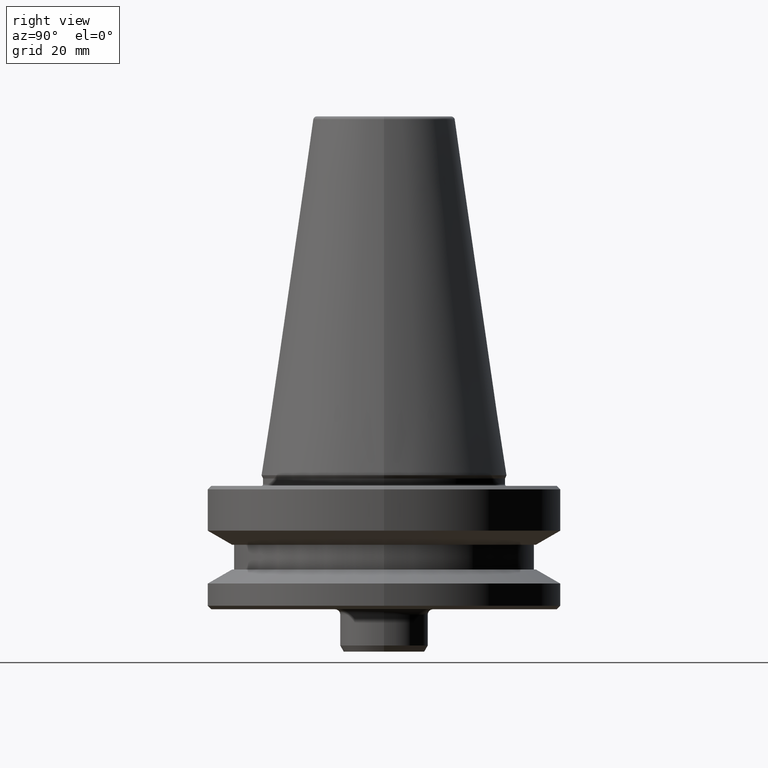
[diagram: clean part render]
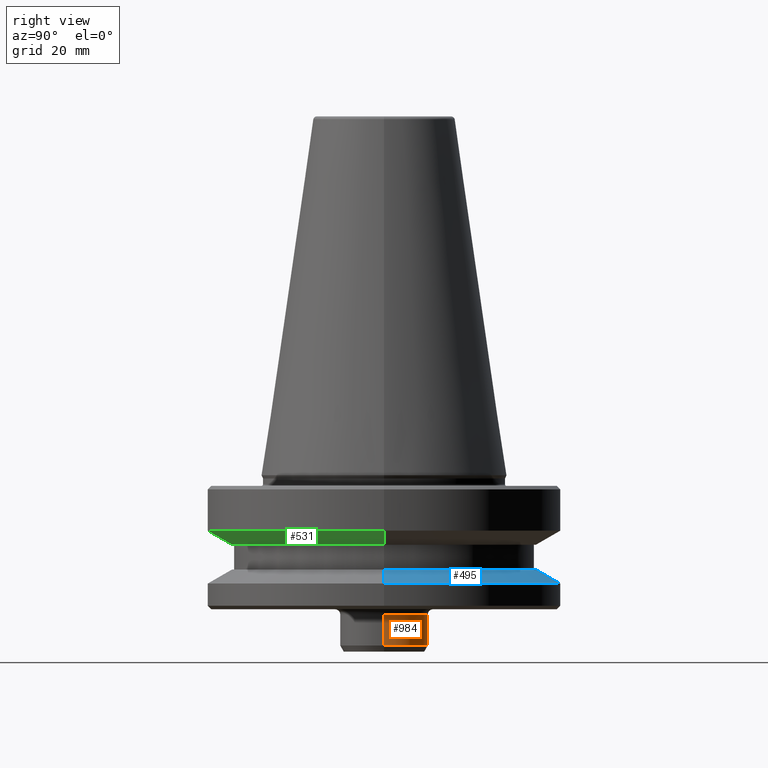
[diagram: same view with three faces highlighted in distinct colors, each labeled with its STEP entity id]
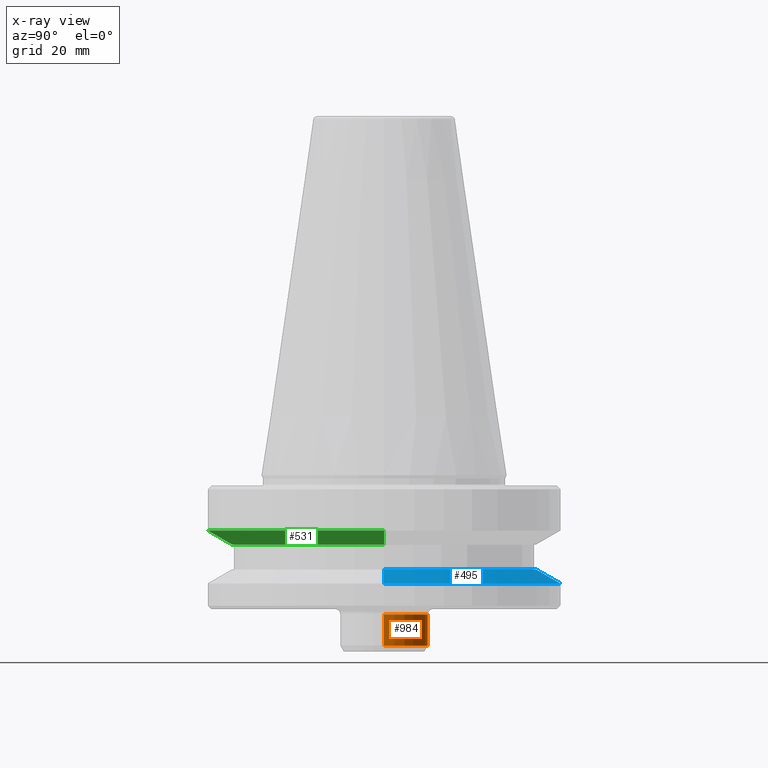
[diagram: x-ray of the same camera — body ghosted, the three highlighted faces saturated]
A machine part, right view with three faces highlighted in distinct colors.
The next image is the same camera in x-ray (body ghosted, the three faces saturated) — at least one of them is partly hidden behind the body in this view.
Their STEP definitions:

[orange] entity #984 — the highlighted cylindrical surface (partial cylindrical patch) has radius 12.5 mm, axis along (-0, -0, 1).
#2 = AXIS2_PLACEMENT_3D ( 'NONE', #58, #611, #130 ) ;
#14 = VERTEX_POINT ( 'NONE', #977 ) ;
#15 = EDGE_CURVE ( 'NONE', #566, #395, #452, .T. ) ;
#21 = AXIS2_PLACEMENT_3D ( 'NONE', #775, #382, #491 ) ;
#58 = CARTESIAN_POINT ( 'NONE',  ( 0.0000000000000000000, 0.0000000000000000000, -39.49999999994123800 ) ) ;
#80 = EDGE_CURVE ( 'NONE', #566, #256, #822, .T. ) ;
#130 = DIRECTION ( 'NONE',  ( 1.000000000000000000, 0.0000000000000000000, 0.0000000000000000000 ) ) ;
#134 = ORIENTED_EDGE ( 'NONE', *, *, #15, .T. ) ;
#163 = CARTESIAN_POINT ( 'NONE',  ( 12.49999999999973400, 0.0000000000000000000, -39.49999999994123800 ) ) ;
#167 = ORIENTED_EDGE ( 'NONE', *, *, #203, .T. ) ;
#175 = AXIS2_PLACEMENT_3D ( 'NONE', #325, #872, #407 ) ;
#199 = EDGE_LOOP ( 'NONE', ( #134, #167, #244, #642 ) ) ;
#203 = EDGE_CURVE ( 'NONE', #395, #14, #609, .T. ) ;
#231 = CYLINDRICAL_SURFACE ( 'NONE', #21, 12.49999999999973400 ) ;
#244 = ORIENTED_EDGE ( 'NONE', *, *, #530, .F. ) ;
#256 = VERTEX_POINT ( 'NONE', #163 ) ;
#269 = CARTESIAN_POINT ( 'NONE',  ( -12.49999999999973400, 1.530808498934158800E-015, 108.3108805077434200 ) ) ;
#325 = CARTESIAN_POINT ( 'NONE',  ( 0.0000000000000000000, 0.0000000000000000000, -48.26794919237296700 ) ) ;
#349 = CARTESIAN_POINT ( 'NONE',  ( -12.49999999999973500, 1.530808498934159200E-015, -48.26794919237296700 ) ) ;
#382 = DIRECTION ( 'NONE',  ( -0.0000000000000000000, -0.0000000000000000000, 1.000000000000000000 ) ) ;
#395 = VERTEX_POINT ( 'NONE', #349 ) ;
#407 = DIRECTION ( 'NONE',  ( 1.000000000000000000, 0.0000000000000000000, 0.0000000000000000000 ) ) ;
#452 = CIRCLE ( 'NONE', #175, 12.49999999999973500 ) ;
#486 = VECTOR ( 'NONE', #620, 1000.000000000000000 ) ;
#491 = DIRECTION ( 'NONE',  ( 1.000000000000000000, 0.0000000000000000000, 0.0000000000000000000 ) ) ;
#513 = DIRECTION ( 'NONE',  ( -0.0000000000000000000, -0.0000000000000000000, 1.000000000000000000 ) ) ;
#530 = EDGE_CURVE ( 'NONE', #256, #14, #709, .T. ) ;
#534 = CARTESIAN_POINT ( 'NONE',  ( 12.49999999999973500, 0.0000000000000000000, -48.26794919237296700 ) ) ;
#566 = VERTEX_POINT ( 'NONE', #534 ) ;
#579 = CARTESIAN_POINT ( 'NONE',  ( 12.49999999999973400, 0.0000000000000000000, 108.3108805077434200 ) ) ;
#609 = LINE ( 'NONE', #269, #712 ) ;
#611 = DIRECTION ( 'NONE',  ( -0.0000000000000000000, -0.0000000000000000000, 1.000000000000000000 ) ) ;
#620 = DIRECTION ( 'NONE',  ( -0.0000000000000000000, -0.0000000000000000000, 1.000000000000000000 ) ) ;
#642 = ORIENTED_EDGE ( 'NONE', *, *, #80, .F. ) ;
#709 = CIRCLE ( 'NONE', #2, 12.49999999999973400 ) ;
#712 = VECTOR ( 'NONE', #513, 1000.000000000000000 ) ;
#775 = CARTESIAN_POINT ( 'NONE',  ( 0.0000000000000000000, 0.0000000000000000000, 108.3108805077434200 ) ) ;
#822 = LINE ( 'NONE', #579, #486 ) ;
#872 = DIRECTION ( 'NONE',  ( -0.0000000000000000000, -0.0000000000000000000, 1.000000000000000000 ) ) ;
#964 = FACE_OUTER_BOUND ( 'NONE', #199, .T. ) ;
#977 = CARTESIAN_POINT ( 'NONE',  ( -12.49999999999973400, 1.530808498934158800E-015, -39.49999999994123800 ) ) ;
#984 = ADVANCED_FACE ( 'NONE', ( #964 ), #231, .T. ) ;

[blue] entity #495 — the highlighted conical surface has half-angle 60 deg.
#86 = LINE ( 'NONE', #369, #252 ) ;
#151 = CARTESIAN_POINT ( 'NONE',  ( 0.0000000000000000000, 0.0000000000000000000, -30.69977999671412400 ) ) ;
#152 = EDGE_CURVE ( 'NONE', #870, #844, #969, .T. ) ;
#209 = CARTESIAN_POINT ( 'NONE',  ( 0.0000000000000000000, 0.0000000000000000000, -26.69999999993998000 ) ) ;
#224 = VERTEX_POINT ( 'NONE', #968 ) ;
#252 = VECTOR ( 'NONE', #450, 1000.000000000000000 ) ;
#284 = DIRECTION ( 'NONE',  ( 1.000000000000000000, 0.0000000000000000000, 0.0000000000000000000 ) ) ;
#299 = CARTESIAN_POINT ( 'NONE',  ( 43.07217782648930900, 5.699027233244158500E-015, -26.69999999993998000 ) ) ;
#347 = DIRECTION ( 'NONE',  ( -0.0000000000000000000, -0.0000000000000000000, 1.000000000000000000 ) ) ;
#365 = DIRECTION ( 'NONE',  ( -0.8660254037844390400, 0.0000000000000000000, -0.4999999999999993300 ) ) ;
#369 = CARTESIAN_POINT ( 'NONE',  ( 49.99999999999982200, 6.123233995736744000E-015, -30.69977999671412400 ) ) ;
#373 = EDGE_LOOP ( 'NONE', ( #770, #538, #655, #524 ) ) ;
#410 = EDGE_CURVE ( 'NONE', #870, #224, #86, .T. ) ;
#450 = DIRECTION ( 'NONE',  ( 0.8660254037844390400, 1.060575238724907400E-016, -0.4999999999999993300 ) ) ;
#490 = VERTEX_POINT ( 'NONE', #930 ) ;
#495 = ADVANCED_FACE ( 'NONE', ( #567 ), #879, .T. ) ;
#500 = AXIS2_PLACEMENT_3D ( 'NONE', #810, #347, #893 ) ;
#524 = ORIENTED_EDGE ( 'NONE', *, *, #535, .F. ) ;
#535 = EDGE_CURVE ( 'NONE', #844, #490, #574, .T. ) ;
#538 = ORIENTED_EDGE ( 'NONE', *, *, #410, .T. ) ;
#567 = FACE_OUTER_BOUND ( 'NONE', #373, .T. ) ;
#574 = LINE ( 'NONE', #829, #714 ) ;
#584 = EDGE_CURVE ( 'NONE', #224, #490, #669, .T. ) ;
#626 = AXIS2_PLACEMENT_3D ( 'NONE', #209, #751, #284 ) ;
#655 = ORIENTED_EDGE ( 'NONE', *, *, #584, .T. ) ;
#666 = CARTESIAN_POINT ( 'NONE',  ( -43.07217782648930900, 0.0000000000000000000, -26.69999999993998000 ) ) ;
#669 = CIRCLE ( 'NONE', #500, 49.99999999999982200 ) ;
#694 = DIRECTION ( 'NONE',  ( 0.0000000000000000000, 0.0000000000000000000, -1.000000000000000000 ) ) ;
#714 = VECTOR ( 'NONE', #365, 1000.000000000000000 ) ;
#743 = AXIS2_PLACEMENT_3D ( 'NONE', #151, #694, #772 ) ;
#751 = DIRECTION ( 'NONE',  ( -0.0000000000000000000, -0.0000000000000000000, 1.000000000000000000 ) ) ;
#770 = ORIENTED_EDGE ( 'NONE', *, *, #152, .F. ) ;
#772 = DIRECTION ( 'NONE',  ( -1.000000000000000000, 0.0000000000000000000, 0.0000000000000000000 ) ) ;
#810 = CARTESIAN_POINT ( 'NONE',  ( 0.0000000000000000000, 0.0000000000000000000, -30.69977999671412400 ) ) ;
#829 = CARTESIAN_POINT ( 'NONE',  ( -49.99999999999982200, 0.0000000000000000000, -30.69977999671412400 ) ) ;
#844 = VERTEX_POINT ( 'NONE', #666 ) ;
#870 = VERTEX_POINT ( 'NONE', #299 ) ;
#879 = CONICAL_SURFACE ( 'NONE', #743, 49.99999999999982200, 1.047197551196598500 ) ;
#893 = DIRECTION ( 'NONE',  ( 1.000000000000000000, 0.0000000000000000000, 0.0000000000000000000 ) ) ;
#930 = CARTESIAN_POINT ( 'NONE',  ( -49.99999999999982200, 6.123233995736744000E-015, -30.69977999671412400 ) ) ;
#968 = CARTESIAN_POINT ( 'NONE',  ( 49.99999999999982200, 0.0000000000000000000, -30.69977999671412400 ) ) ;
#969 = CIRCLE ( 'NONE', #626, 43.07217782648930900 ) ;

[green] entity #531 — the highlighted conical surface has half-angle 60 deg.
#18 = VERTEX_POINT ( 'NONE', #202 ) ;
#36 = EDGE_CURVE ( 'NONE', #300, #654, #499, .T. ) ;
#43 = AXIS2_PLACEMENT_3D ( 'NONE', #832, #934, #508 ) ;
#64 = CONICAL_SURFACE ( 'NONE', #855, 43.07217782649175300, 1.047197551196595400 ) ;
#69 = EDGE_CURVE ( 'NONE', #378, #18, #544, .T. ) ;
#99 = CARTESIAN_POINT ( 'NONE',  ( -43.07217782649175300, 5.274820470751872700E-015, -19.70000000000070300 ) ) ;
#202 = CARTESIAN_POINT ( 'NONE',  ( -50.00000000000027000, 6.123233995736798400E-015, -15.70022000322768300 ) ) ;
#298 = FACE_OUTER_BOUND ( 'NONE', #677, .T. ) ;
#300 = VERTEX_POINT ( 'NONE', #610 ) ;
#316 = CIRCLE ( 'NONE', #43, 50.00000000000027000 ) ;
#370 = VECTOR ( 'NONE', #916, 999.9999999999998900 ) ;
#374 = DIRECTION ( 'NONE',  ( -0.8660254037844376000, 1.060575238724905600E-016, 0.5000000000000020000 ) ) ;
#378 = VERTEX_POINT ( 'NONE', #468 ) ;
#435 = DIRECTION ( 'NONE',  ( -0.0000000000000000000, -0.0000000000000000000, 1.000000000000000000 ) ) ;
#442 = CARTESIAN_POINT ( 'NONE',  ( 0.0000000000000000000, 0.0000000000000000000, -19.70000000000070300 ) ) ;
#468 = CARTESIAN_POINT ( 'NONE',  ( -43.07217782649175300, 5.699027233244335200E-015, -19.70000000000070300 ) ) ;
#471 = ORIENTED_EDGE ( 'NONE', *, *, #571, .F. ) ;
#499 = LINE ( 'NONE', #830, #370 ) ;
#508 = DIRECTION ( 'NONE',  ( 1.000000000000000000, 0.0000000000000000000, 0.0000000000000000000 ) ) ;
#525 = CARTESIAN_POINT ( 'NONE',  ( 50.00000000000027000, 0.0000000000000000000, -15.70022000322768300 ) ) ;
#531 = ADVANCED_FACE ( 'NONE', ( #298 ), #64, .T. ) ;
#544 = LINE ( 'NONE', #99, #819 ) ;
#571 = EDGE_CURVE ( 'NONE', #18, #654, #316, .T. ) ;
#610 = CARTESIAN_POINT ( 'NONE',  ( 43.07217782649175300, 0.0000000000000000000, -19.70000000000070300 ) ) ;
#636 = EDGE_CURVE ( 'NONE', #378, #300, #857, .T. ) ;
#654 = VERTEX_POINT ( 'NONE', #525 ) ;
#677 = EDGE_LOOP ( 'NONE', ( #868, #706, #827, #471 ) ) ;
#706 = ORIENTED_EDGE ( 'NONE', *, *, #636, .T. ) ;
#819 = VECTOR ( 'NONE', #374, 999.9999999999998900 ) ;
#827 = ORIENTED_EDGE ( 'NONE', *, *, #36, .T. ) ;
#830 = CARTESIAN_POINT ( 'NONE',  ( 43.07217782649175300, 0.0000000000000000000, -19.70000000000070300 ) ) ;
#832 = CARTESIAN_POINT ( 'NONE',  ( 0.0000000000000000000, 0.0000000000000000000, -15.70022000322768300 ) ) ;
#855 = AXIS2_PLACEMENT_3D ( 'NONE', #442, #988, #913 ) ;
#857 = CIRCLE ( 'NONE', #871, 43.07217782649175300 ) ;
#868 = ORIENTED_EDGE ( 'NONE', *, *, #69, .F. ) ;
#871 = AXIS2_PLACEMENT_3D ( 'NONE', #905, #435, #981 ) ;
#905 = CARTESIAN_POINT ( 'NONE',  ( 0.0000000000000000000, 0.0000000000000000000, -19.70000000000070300 ) ) ;
#913 = DIRECTION ( 'NONE',  ( 1.000000000000000000, 0.0000000000000000000, 0.0000000000000000000 ) ) ;
#916 = DIRECTION ( 'NONE',  ( 0.8660254037844376000, 0.0000000000000000000, 0.5000000000000020000 ) ) ;
#934 = DIRECTION ( 'NONE',  ( -0.0000000000000000000, -0.0000000000000000000, 1.000000000000000000 ) ) ;
#981 = DIRECTION ( 'NONE',  ( 1.000000000000000000, 0.0000000000000000000, 0.0000000000000000000 ) ) ;
#988 = DIRECTION ( 'NONE',  ( -0.0000000000000000000, -0.0000000000000000000, 1.000000000000000000 ) ) ;